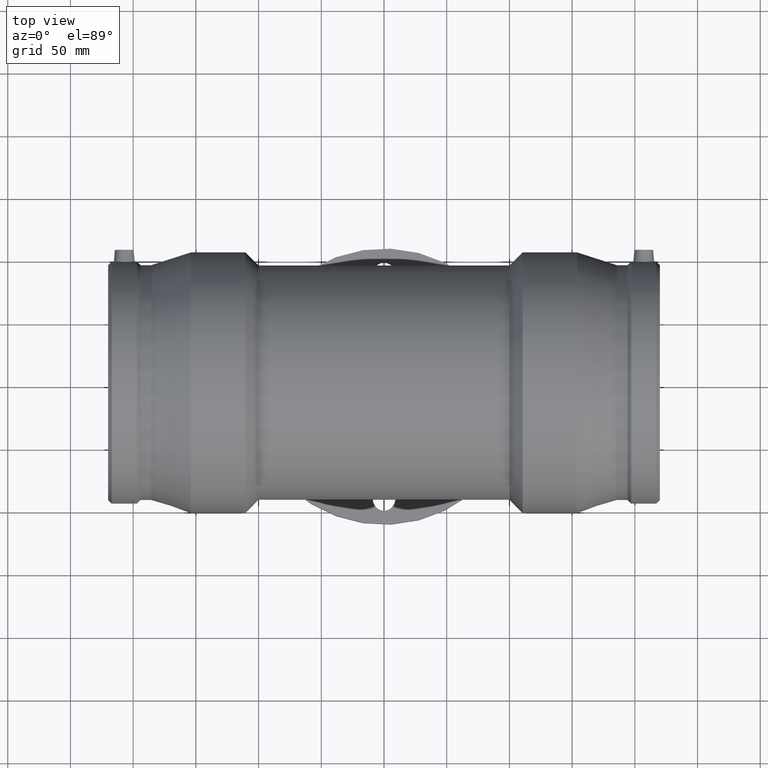
[diagram: clean part render]
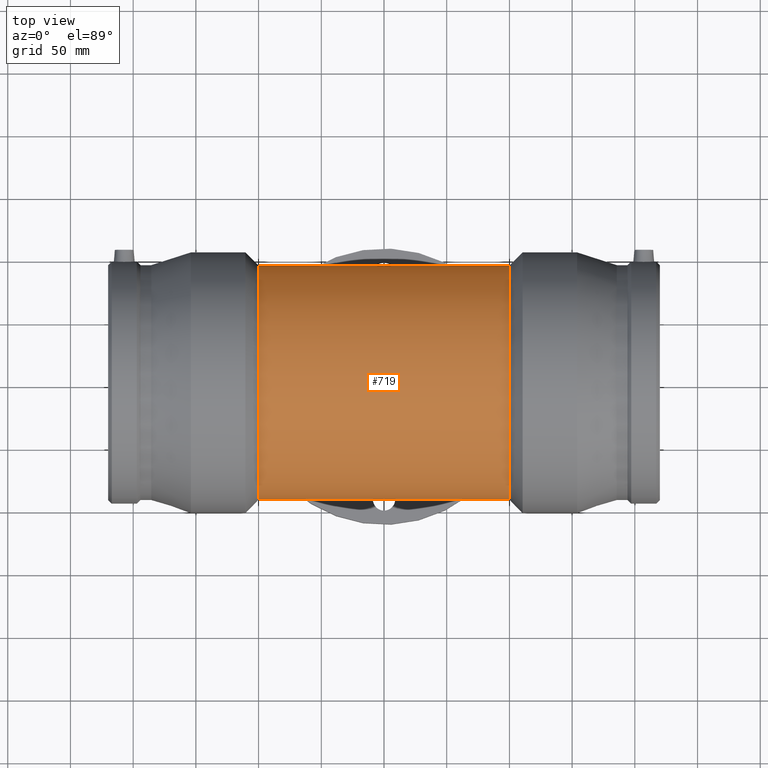
[diagram: same view with one face highlighted and labeled with its STEP entity id]
A machine part, top view. The second image highlights one B-rep face of the part: STEP entity #719.
In plain terms, the highlighted cylindrical surface (bore or boss wall) has radius 93.6 mm, axis along (1, 0, 0).
Its self-contained STEP definition (entity closure, byte-faithful):
#79=FACE_BOUND('',#331,.T.);
#80=FACE_BOUND('',#332,.T.);
#147=CIRCLE('',#807,93.6);
#148=CIRCLE('',#808,93.6);
#199=CYLINDRICAL_SURFACE('',#806,93.6);
#235=FACE_OUTER_BOUND('',#330,.T.);
#330=EDGE_LOOP('',(#616));
#331=EDGE_LOOP('',(#617));
#332=EDGE_LOOP('',(#618));
#416=B_SPLINE_CURVE_WITH_KNOTS('',3,(#1453,#1454,#1455,#1456,#1457,#1458,
#1459,#1460,#1461,#1462,#1463,#1464,#1465,#1466,#1467,#1468,#1469,#1470,
#1471,#1472,#1473,#1474,#1475,#1476,#1477,#1478,#1479,#1480,#1481,#1482,
#1483,#1484,#1485,#1486,#1487,#1488,#1489,#1490,#1491,#1492,#1493,#1494,
#1495,#1496,#1497,#1498,#1499,#1500,#1501,#1502,#1503,#1504,#1505,#1506,
#1507,#1508,#1509,#1510,#1511,#1512,#1513,#1514,#1515,#1516,#1517,#1518),
 .UNSPECIFIED.,.T.,.F.,(4,2,2,2,2,2,2,2,2,2,2,2,2,2,2,2,2,2,2,2,2,2,2,2,
2,2,2,2,2,2,2,2,4),(0.,1.23316896445918,2.46633792891835,3.69950689337753,
4.93267585783671,6.15216393810021,7.37165201836371,8.59114009862721,9.81062817889071,
11.0301162591542,12.2496043394177,13.4690924196812,14.6885804999447,15.9217494644039,
17.1549184288631,18.3880873933222,19.6212563577814,20.8544253222406,22.0875942866998,
23.320763251159,24.5539322156181,25.7734202958816,26.9929083761451,28.2123964564086,
29.4318845366721,30.6513726169356,31.8708606971991,33.0903487774626,34.3098368577261,
35.5430058221853,36.7761747866445,38.0093437511037,39.2425127155628),
 .UNSPECIFIED.);
#439=VERTEX_POINT('',#1452);
#448=VERTEX_POINT('',#1545);
#449=VERTEX_POINT('',#1547);
#509=EDGE_CURVE('',#439,#439,#416,.T.);
#518=EDGE_CURVE('',#448,#448,#147,.T.);
#519=EDGE_CURVE('',#449,#449,#148,.T.);
#616=ORIENTED_EDGE('',*,*,#518,.F.);
#617=ORIENTED_EDGE('',*,*,#519,.T.);
#618=ORIENTED_EDGE('',*,*,#509,.T.);
#719=ADVANCED_FACE('',(#235,#79,#80),#199,.T.);
#806=AXIS2_PLACEMENT_3D('',#1544,#977,#978);
#807=AXIS2_PLACEMENT_3D('',#1546,#979,#980);
#808=AXIS2_PLACEMENT_3D('',#1548,#981,#982);
#977=DIRECTION('center_axis',(1.,0.,0.));
#978=DIRECTION('ref_axis',(0.,1.,0.));
#979=DIRECTION('center_axis',(1.,0.,0.));
#980=DIRECTION('ref_axis',(0.,0.,-1.));
#981=DIRECTION('center_axis',(1.,0.,0.));
#982=DIRECTION('ref_axis',(0.,0.,-1.));
#1452=CARTESIAN_POINT('',(-6.66133814775094E-15,62.5,-69.67574900925));
#1453=CARTESIAN_POINT('Ctrl Pts',(-6.66133814775094E-15,62.5,-69.67574900925));
#1454=CARTESIAN_POINT('Ctrl Pts',(-4.11056321486393,62.5,-69.67574900925));
#1455=CARTESIAN_POINT('Ctrl Pts',(-8.28476330562493,62.0889869009098,-70.0507922320583));
#1456=CARTESIAN_POINT('Ctrl Pts',(-16.4691575545649,60.4354735224989,-71.4822307624096));
#1457=CARTESIAN_POINT('Ctrl Pts',(-20.4803427673525,59.1939683630572,-72.5341052050067));
#1458=CARTESIAN_POINT('Ctrl Pts',(-28.1051459003084,55.9774269178298,-75.044313641079));
#1459=CARTESIAN_POINT('Ctrl Pts',(-31.726879762019,53.9996602566473,-76.500913819204));
#1460=CARTESIAN_POINT('Ctrl Pts',(-38.4122672307839,49.4677261949394,-79.5065858110318));
#1461=CARTESIAN_POINT('Ctrl Pts',(-41.4759930145705,46.9123546337479,-81.0536810129389));
#1462=CARTESIAN_POINT('Ctrl Pts',(-46.8821988984427,41.5061487498758,-83.9493778364672));
#1463=CARTESIAN_POINT('Ctrl Pts',(-49.4319780979883,38.4586517945413,-85.410212987902));
#1464=CARTESIAN_POINT('Ctrl Pts',(-53.9739565974566,31.7710617871144,-88.116808914275));
#1465=CARTESIAN_POINT('Ctrl Pts',(-55.9664301120034,28.1305378705002,-89.3610446855077));
#1466=CARTESIAN_POINT('Ctrl Pts',(-59.201963147929,20.4620664425623,-91.4222477009134));
#1467=CARTESIAN_POINT('Ctrl Pts',(-60.4476799392172,16.4259460690248,-92.2401674868348));
#1468=CARTESIAN_POINT('Ctrl Pts',(-62.0970363305552,8.22750225693909,-93.3293544871118));
#1469=CARTESIAN_POINT('Ctrl Pts',(-62.5,4.064960267545,-93.6));
#1470=CARTESIAN_POINT('Ctrl Pts',(-62.5,-4.064960267545,-93.6));
#1471=CARTESIAN_POINT('Ctrl Pts',(-62.0970363305552,-8.22750225693909,-93.3293544871118));
#1472=CARTESIAN_POINT('Ctrl Pts',(-60.4476799392172,-16.4259460690248,-92.2401674868348));
#1473=CARTESIAN_POINT('Ctrl Pts',(-59.201963147929,-20.4620664425623,-91.4222477009134));
#1474=CARTESIAN_POINT('Ctrl Pts',(-55.9664301120034,-28.1305378705002,-89.3610446855077));
#1475=CARTESIAN_POINT('Ctrl Pts',(-53.9739565974566,-31.7710617871144,-88.116808914275));
#1476=CARTESIAN_POINT('Ctrl Pts',(-49.4319780979883,-38.4586517945412,-85.410212987902));
#1477=CARTESIAN_POINT('Ctrl Pts',(-46.8821988984427,-41.5061487498758,-83.9493778364672));
#1478=CARTESIAN_POINT('Ctrl Pts',(-41.4759930145705,-46.9123546337479,-81.0536810129389));
#1479=CARTESIAN_POINT('Ctrl Pts',(-38.4122672307838,-49.4677261949394,-79.5065858110318));
#1480=CARTESIAN_POINT('Ctrl Pts',(-31.726879762019,-53.9996602566473,-76.500913819204));
#1481=CARTESIAN_POINT('Ctrl Pts',(-28.1051459003083,-55.9774269178298,-75.044313641079));
#1482=CARTESIAN_POINT('Ctrl Pts',(-20.4803427673525,-59.1939683630572,-72.5341052050067));
#1483=CARTESIAN_POINT('Ctrl Pts',(-16.4691575545649,-60.4354735224989,-71.4822307624096));
#1484=CARTESIAN_POINT('Ctrl Pts',(-8.28476330562493,-62.0889869009098,-70.0507922320583));
#1485=CARTESIAN_POINT('Ctrl Pts',(-4.11056321486394,-62.5,-69.67574900925));
#1486=CARTESIAN_POINT('Ctrl Pts',(4.11056321486392,-62.5,-69.67574900925));
#1487=CARTESIAN_POINT('Ctrl Pts',(8.28476330562491,-62.0889869009098,-70.0507922320583));
#1488=CARTESIAN_POINT('Ctrl Pts',(16.4691575545649,-60.4354735224989,-71.4822307624096));
#1489=CARTESIAN_POINT('Ctrl Pts',(20.4803427673525,-59.1939683630572,-72.5341052050067));
#1490=CARTESIAN_POINT('Ctrl Pts',(28.1051459003083,-55.9774269178298,-75.044313641079));
#1491=CARTESIAN_POINT('Ctrl Pts',(31.726879762019,-53.9996602566473,-76.500913819204));
#1492=CARTESIAN_POINT('Ctrl Pts',(38.4122672307838,-49.4677261949394,-79.5065858110318));
#1493=CARTESIAN_POINT('Ctrl Pts',(41.4759930145705,-46.9123546337479,-81.0536810129389));
#1494=CARTESIAN_POINT('Ctrl Pts',(46.8821988984426,-41.5061487498758,-83.9493778364672));
#1495=CARTESIAN_POINT('Ctrl Pts',(49.4319780979883,-38.4586517945412,-85.410212987902));
#1496=CARTESIAN_POINT('Ctrl Pts',(53.9739565974565,-31.7710617871144,-88.116808914275));
#1497=CARTESIAN_POINT('Ctrl Pts',(55.9664301120033,-28.1305378705002,-89.3610446855077));
#1498=CARTESIAN_POINT('Ctrl Pts',(59.201963147929,-20.4620664425623,-91.4222477009134));
#1499=CARTESIAN_POINT('Ctrl Pts',(60.4476799392172,-16.4259460690248,-92.2401674868348));
#1500=CARTESIAN_POINT('Ctrl Pts',(62.0970363305552,-8.22750225693909,-93.3293544871118));
#1501=CARTESIAN_POINT('Ctrl Pts',(62.5,-4.064960267545,-93.6));
#1502=CARTESIAN_POINT('Ctrl Pts',(62.5,4.06496026754499,-93.6));
#1503=CARTESIAN_POINT('Ctrl Pts',(62.0970363305552,8.22750225693909,-93.3293544871118));
#1504=CARTESIAN_POINT('Ctrl Pts',(60.4476799392172,16.4259460690248,-92.2401674868348));
#1505=CARTESIAN_POINT('Ctrl Pts',(59.201963147929,20.4620664425623,-91.4222477009134));
#1506=CARTESIAN_POINT('Ctrl Pts',(55.9664301120034,28.1305378705002,-89.3610446855077));
#1507=CARTESIAN_POINT('Ctrl Pts',(53.9739565974565,31.7710617871144,-88.116808914275));
#1508=CARTESIAN_POINT('Ctrl Pts',(49.4319780979883,38.4586517945413,-85.410212987902));
#1509=CARTESIAN_POINT('Ctrl Pts',(46.8821988984426,41.5061487498758,-83.9493778364672));
#1510=CARTESIAN_POINT('Ctrl Pts',(41.4759930145705,46.9123546337479,-81.0536810129389));
#1511=CARTESIAN_POINT('Ctrl Pts',(38.4122672307838,49.4677261949394,-79.5065858110318));
#1512=CARTESIAN_POINT('Ctrl Pts',(31.726879762019,53.9996602566473,-76.500913819204));
#1513=CARTESIAN_POINT('Ctrl Pts',(28.1051459003083,55.9774269178298,-75.044313641079));
#1514=CARTESIAN_POINT('Ctrl Pts',(20.4803427673525,59.1939683630573,-72.5341052050067));
#1515=CARTESIAN_POINT('Ctrl Pts',(16.4691575545649,60.4354735224989,-71.4822307624096));
#1516=CARTESIAN_POINT('Ctrl Pts',(8.2847633056249,62.0889869009098,-70.0507922320583));
#1517=CARTESIAN_POINT('Ctrl Pts',(4.11056321486391,62.5,-69.67574900925));
#1518=CARTESIAN_POINT('Ctrl Pts',(-1.33226762955019E-14,62.5,-69.67574900925));
#1544=CARTESIAN_POINT('Origin',(0.,0.,0.));
#1545=CARTESIAN_POINT('',(100.1,93.6,0.));
#1546=CARTESIAN_POINT('Origin',(100.1,0.,0.));
#1547=CARTESIAN_POINT('',(-100.1,93.6,0.));
#1548=CARTESIAN_POINT('Origin',(-100.1,0.,0.));